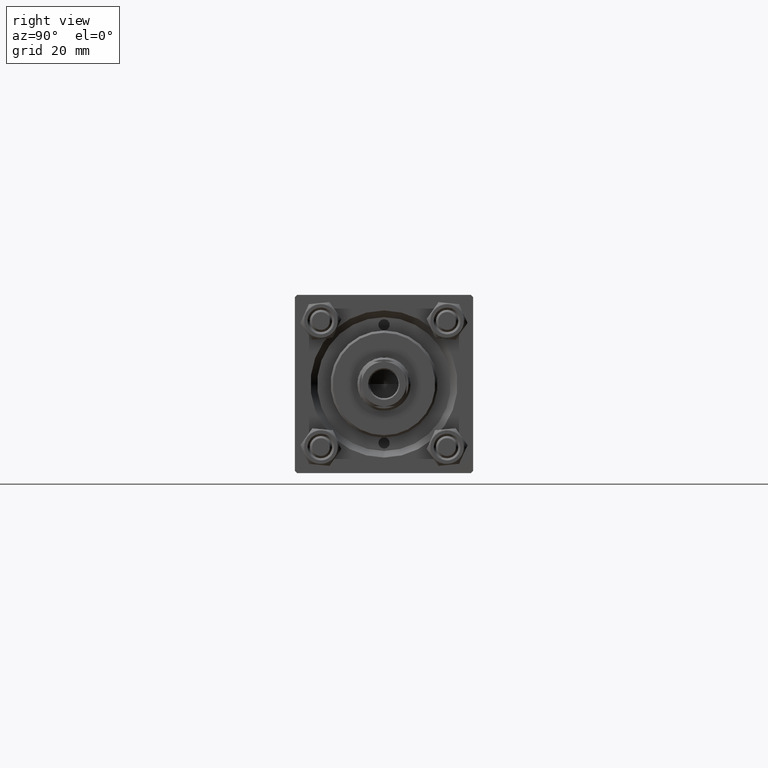
[diagram: clean part render]
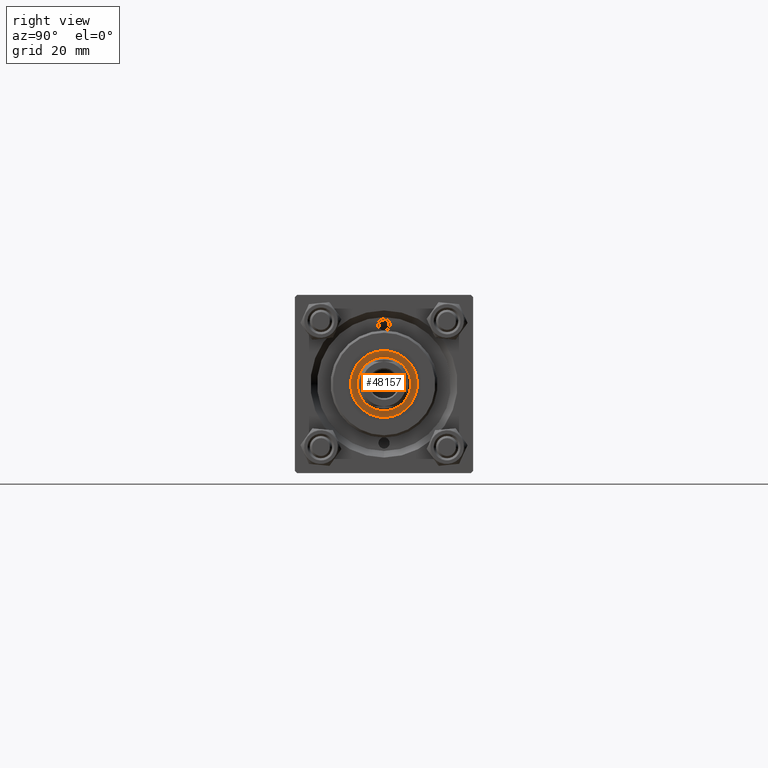
[diagram: same view with one face highlighted and labeled with its STEP entity id]
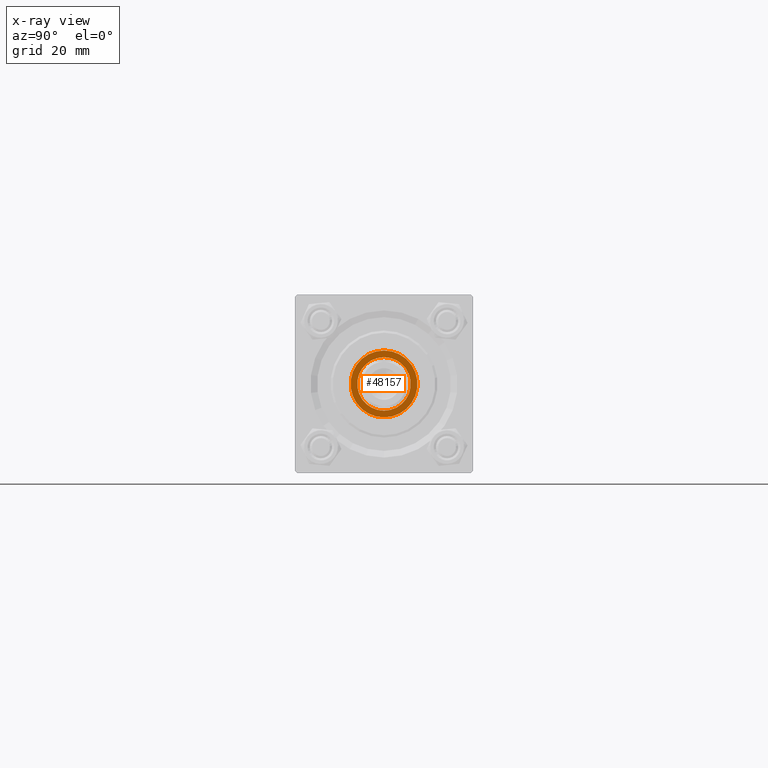
[diagram: x-ray of the same camera — body ghosted, the highlighted face saturated]
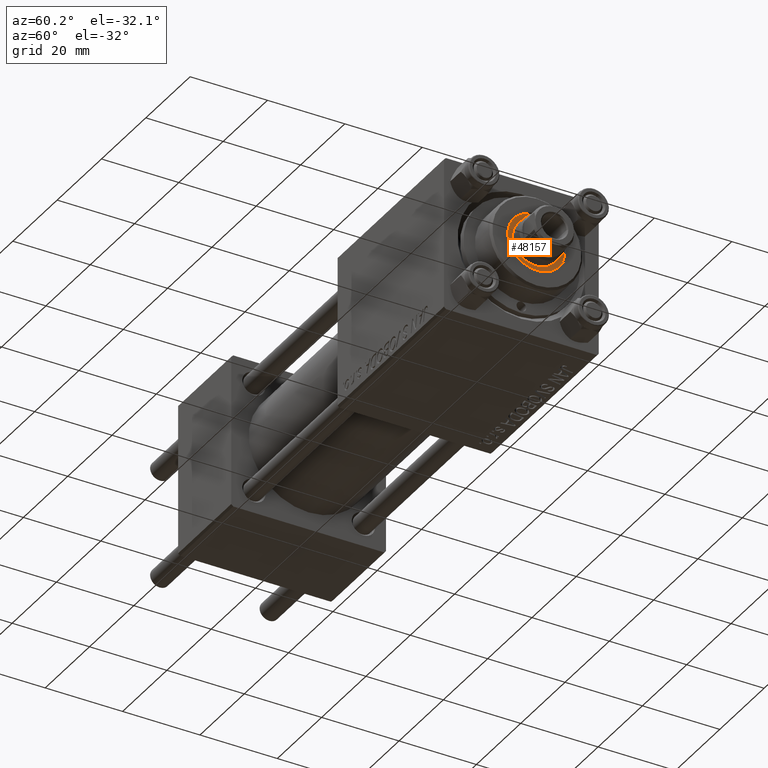
[diagram: same view with one face highlighted and labeled with its STEP entity id]
A machine part, right view. The second image highlights one B-rep face of the part: STEP entity #48157.
The next image is the same camera in x-ray: the body ghosted, the highlighted face saturated — about 0% of this face is hidden behind the body in this view.
A second angle (auxiliary view) of the same face is appended — the face is thin or edge-on in the first view.
In plain terms, the highlighted planar face has unit normal (1, 0, -0).
Its self-contained STEP definition (entity closure, byte-faithful):
#2293 = EDGE_CURVE ( 'NONE', #31448, #18452, #35966, .T. ) ;
#2349 = EDGE_CURVE ( 'NONE', #21819, #26361, #5336, .T. ) ;
#2406 = DIRECTION ( 'NONE',  ( 1.000000000000000000, 0.000000000000000000, 0.000000000000000000 ) ) ;
#2478 = EDGE_CURVE ( 'NONE', #26361, #21819, #3757, .T. ) ;
#3757 = CIRCLE ( 'NONE', #43249, 6.000000000000000888 ) ;
#4389 = DIRECTION ( 'NONE',  ( 1.000000000000000000, 0.000000000000000000, 0.000000000000000000 ) ) ;
#5336 = CIRCLE ( 'NONE', #19847, 6.000000000000000888 ) ;
#6587 = CARTESIAN_POINT ( 'NONE',  ( -6.000000000000000888, 7.347880794884119736E-16, 35.20000000000000284 ) ) ;
#8003 = AXIS2_PLACEMENT_3D ( 'NONE', #35959, #32663, #13477 ) ;
#13477 = DIRECTION ( 'NONE',  ( 1.000000000000000000, 0.000000000000000000, 0.000000000000000000 ) ) ;
#14018 = EDGE_CURVE ( 'NONE', #18452, #31448, #23308, .T. ) ;
#14104 = DIRECTION ( 'NONE',  ( 1.000000000000000000, 0.000000000000000000, -0.000000000000000000 ) ) ;
#14814 = ORIENTED_EDGE ( 'NONE', *, *, #2349, .T. ) ;
#15005 = AXIS2_PLACEMENT_3D ( 'NONE', #33313, #40649, #14104 ) ;
#15746 = CARTESIAN_POINT ( 'NONE',  ( 0.000000000000000000, 0.000000000000000000, 35.20000000000000284 ) ) ;
#17888 = FACE_OUTER_BOUND ( 'NONE', #21143, .T. ) ;
#18452 = VERTEX_POINT ( 'NONE', #48255 ) ;
#19847 = AXIS2_PLACEMENT_3D ( 'NONE', #26126, #37751, #44578 ) ;
#20639 = AXIS2_PLACEMENT_3D ( 'NONE', #41042, #41293, #2406 ) ;
#21015 = EDGE_LOOP ( 'NONE', ( #37436, #14814 ) ) ;
#21143 = EDGE_LOOP ( 'NONE', ( #28736, #49462 ) ) ;
#21819 = VERTEX_POINT ( 'NONE', #6587 ) ;
#23081 = DIRECTION ( 'NONE',  ( -0.000000000000000000, -0.000000000000000000, -1.000000000000000000 ) ) ;
#23308 = CIRCLE ( 'NONE', #8003, 7.500000000000000888 ) ;
#26126 = CARTESIAN_POINT ( 'NONE',  ( 0.000000000000000000, 0.000000000000000000, 35.20000000000000284 ) ) ;
#26361 = VERTEX_POINT ( 'NONE', #37656 ) ;
#28736 = ORIENTED_EDGE ( 'NONE', *, *, #14018, .T. ) ;
#28774 = CARTESIAN_POINT ( 'NONE',  ( -7.500000000000000888, 9.184850993605149917E-16, 35.20000000000000284 ) ) ;
#29022 = PLANE ( 'NONE',  #15005 ) ;
#31448 = VERTEX_POINT ( 'NONE', #28774 ) ;
#32663 = DIRECTION ( 'NONE',  ( 0.000000000000000000, 0.000000000000000000, 1.000000000000000000 ) ) ;
#33313 = CARTESIAN_POINT ( 'NONE',  ( 0.000000000000000000, 0.000000000000000000, 35.20000000000000284 ) ) ;
#35959 = CARTESIAN_POINT ( 'NONE',  ( 0.000000000000000000, 0.000000000000000000, 35.20000000000000284 ) ) ;
#35966 = CIRCLE ( 'NONE', #20639, 7.500000000000000888 ) ;
#36590 = FACE_BOUND ( 'NONE', #21015, .T. ) ;
#37436 = ORIENTED_EDGE ( 'NONE', *, *, #2478, .T. ) ;
#37656 = CARTESIAN_POINT ( 'NONE',  ( 6.000000000000000888, 0.000000000000000000, 35.20000000000000284 ) ) ;
#37751 = DIRECTION ( 'NONE',  ( -0.000000000000000000, -0.000000000000000000, -1.000000000000000000 ) ) ;
#40649 = DIRECTION ( 'NONE',  ( 0.000000000000000000, 0.000000000000000000, 1.000000000000000000 ) ) ;
#41042 = CARTESIAN_POINT ( 'NONE',  ( 0.000000000000000000, 0.000000000000000000, 35.20000000000000284 ) ) ;
#41293 = DIRECTION ( 'NONE',  ( 0.000000000000000000, 0.000000000000000000, 1.000000000000000000 ) ) ;
#43249 = AXIS2_PLACEMENT_3D ( 'NONE', #15746, #23081, #4389 ) ;
#44578 = DIRECTION ( 'NONE',  ( 1.000000000000000000, 0.000000000000000000, 0.000000000000000000 ) ) ;
#48157 = ADVANCED_FACE ( 'NONE', ( #17888, #36590 ), #29022, .T. ) ;
#48255 = CARTESIAN_POINT ( 'NONE',  ( 7.500000000000000888, 0.000000000000000000, 35.20000000000000284 ) ) ;
#49462 = ORIENTED_EDGE ( 'NONE', *, *, #2293, .T. ) ;